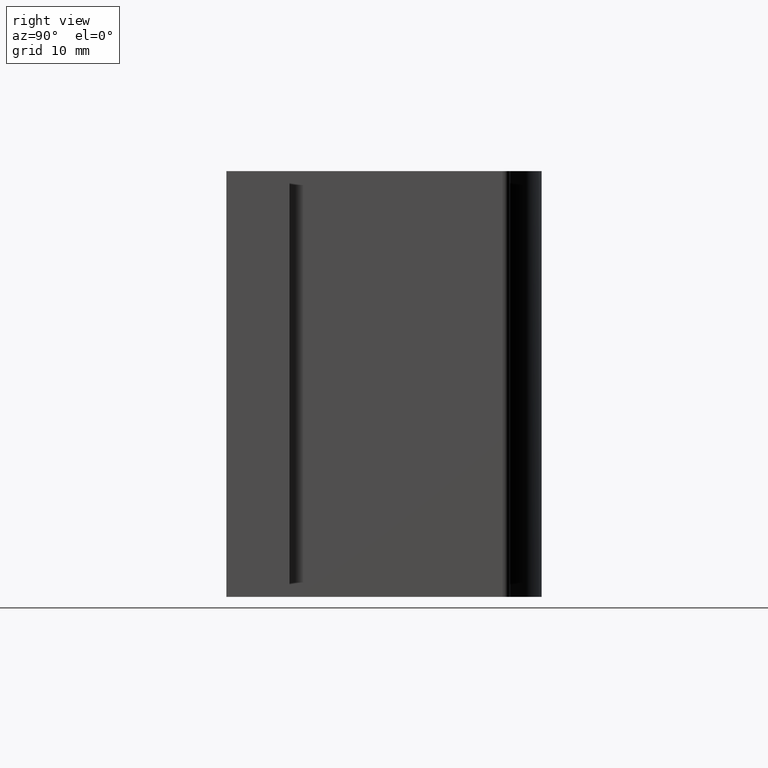
[diagram: clean part render]
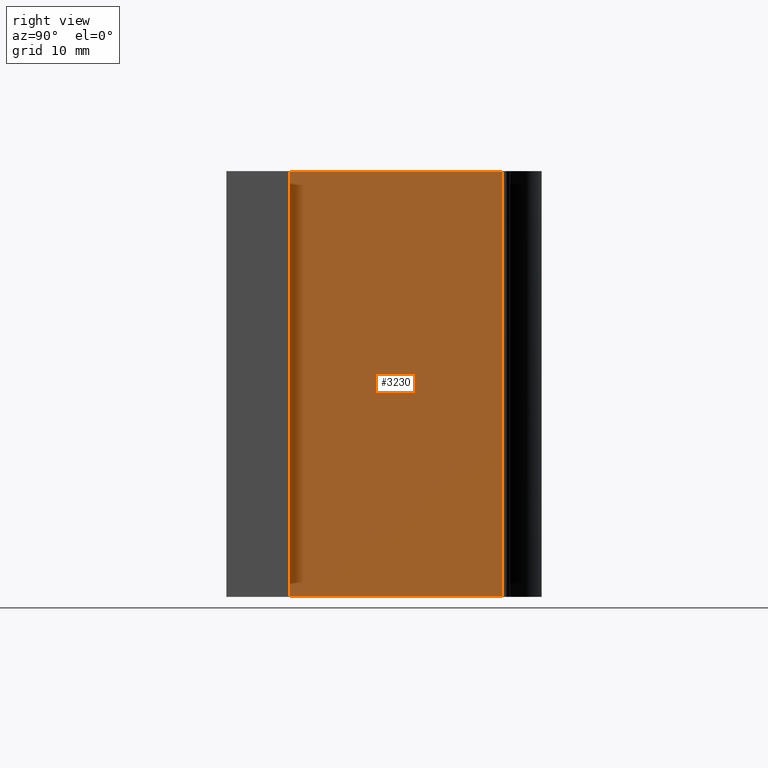
[diagram: same view with one face highlighted and labeled with its STEP entity id]
A machine part, right view. The second image highlights one B-rep face of the part: STEP entity #3230.
In plain terms, the highlighted planar face has unit normal (-1, 0, 0).
Its self-contained STEP definition (entity closure, byte-faithful):
#296 = CARTESIAN_POINT ( 'NONE',  ( 0.6875000000000000000, -0.4369999999999997220, -0.8440000000000000835 ) ) ;
#320 = VECTOR ( 'NONE', #3430, 39.37007874015748143 ) ;
#404 = AXIS2_PLACEMENT_3D ( 'NONE', #3607, #1511, #2377 ) ;
#483 = CARTESIAN_POINT ( 'NONE',  ( 0.6875000000000000000, 0.0000000000000000000, -0.8440000000000000835 ) ) ;
#532 = PLANE ( 'NONE',  #404 ) ;
#815 = CARTESIAN_POINT ( 'NONE',  ( 0.6875000000000000000, -0.4369999999999997220, -1.256984563876181848 ) ) ;
#867 = EDGE_LOOP ( 'NONE', ( #3343, #1096, #3189, #3604 ) ) ;
#1096 = ORIENTED_EDGE ( 'NONE', *, *, #1608, .T. ) ;
#1511 = DIRECTION ( 'NONE',  ( -1.000000000000000000, 0.0000000000000000000, 0.0000000000000000000 ) ) ;
#1608 = EDGE_CURVE ( 'NONE', #3845, #1803, #3445, .T. ) ;
#1645 = FACE_OUTER_BOUND ( 'NONE', #867, .T. ) ;
#1692 = VECTOR ( 'NONE', #2970, 39.37007874015748143 ) ;
#1775 = DIRECTION ( 'NONE',  ( 0.0000000000000000000, -1.000000000000000000, 0.0000000000000000000 ) ) ;
#1803 = VERTEX_POINT ( 'NONE', #2480 ) ;
#2226 = VECTOR ( 'NONE', #3880, 39.37007874015748143 ) ;
#2377 = DIRECTION ( 'NONE',  ( 0.0000000000000000000, 0.0000000000000000000, 1.000000000000000000 ) ) ;
#2386 = VERTEX_POINT ( 'NONE', #296 ) ;
#2468 = LINE ( 'NONE', #483, #2226 ) ;
#2480 = CARTESIAN_POINT ( 'NONE',  ( 0.6875000000000000000, 0.4079999999999999183, 0.8439999999999997504 ) ) ;
#2616 = VECTOR ( 'NONE', #1775, 39.37007874015748143 ) ;
#2699 = CARTESIAN_POINT ( 'NONE',  ( 0.6875000000000000000, 0.0000000000000000000, 0.8439999999999997504 ) ) ;
#2755 = CARTESIAN_POINT ( 'NONE',  ( 0.6875000000000000000, 0.4079999999999999183, -0.8440000000000000835 ) ) ;
#2796 = EDGE_CURVE ( 'NONE', #1803, #3418, #3938, .T. ) ;
#2970 = DIRECTION ( 'NONE',  ( 0.0000000000000000000, 0.0000000000000000000, 1.000000000000000000 ) ) ;
#3136 = CARTESIAN_POINT ( 'NONE',  ( 0.6875000000000000000, 0.4079999999999999183, -0.8440000000000000835 ) ) ;
#3189 = ORIENTED_EDGE ( 'NONE', *, *, #2796, .T. ) ;
#3230 = ADVANCED_FACE ( 'NONE', ( #1645 ), #532, .F. ) ;
#3343 = ORIENTED_EDGE ( 'NONE', *, *, #3602, .F. ) ;
#3418 = VERTEX_POINT ( 'NONE', #3841 ) ;
#3430 = DIRECTION ( 'NONE',  ( 0.0000000000000000000, 0.0000000000000000000, 1.000000000000000000 ) ) ;
#3445 = LINE ( 'NONE', #3136, #320 ) ;
#3602 = EDGE_CURVE ( 'NONE', #3845, #2386, #2468, .T. ) ;
#3604 = ORIENTED_EDGE ( 'NONE', *, *, #3659, .F. ) ;
#3607 = CARTESIAN_POINT ( 'NONE',  ( 0.6875000000000000000, 0.0000000000000000000, -0.8440000000000000835 ) ) ;
#3659 = EDGE_CURVE ( 'NONE', #2386, #3418, #3671, .T. ) ;
#3671 = LINE ( 'NONE', #815, #1692 ) ;
#3841 = CARTESIAN_POINT ( 'NONE',  ( 0.6875000000000000000, -0.4369999999999997220, 0.8439999999999997504 ) ) ;
#3845 = VERTEX_POINT ( 'NONE', #2755 ) ;
#3880 = DIRECTION ( 'NONE',  ( 0.0000000000000000000, -1.000000000000000000, 0.0000000000000000000 ) ) ;
#3938 = LINE ( 'NONE', #2699, #2616 ) ;